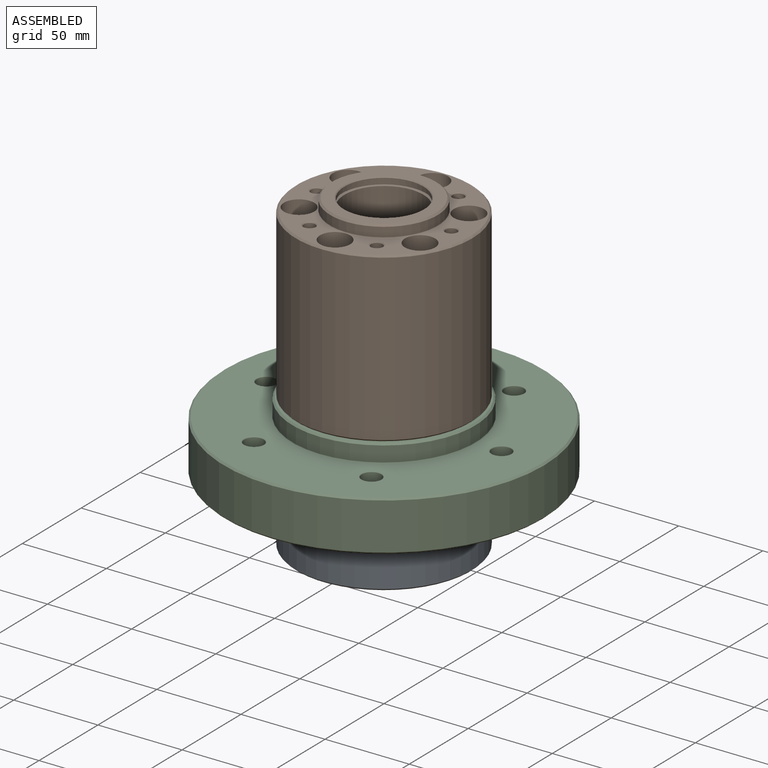
[diagram: assembled view]
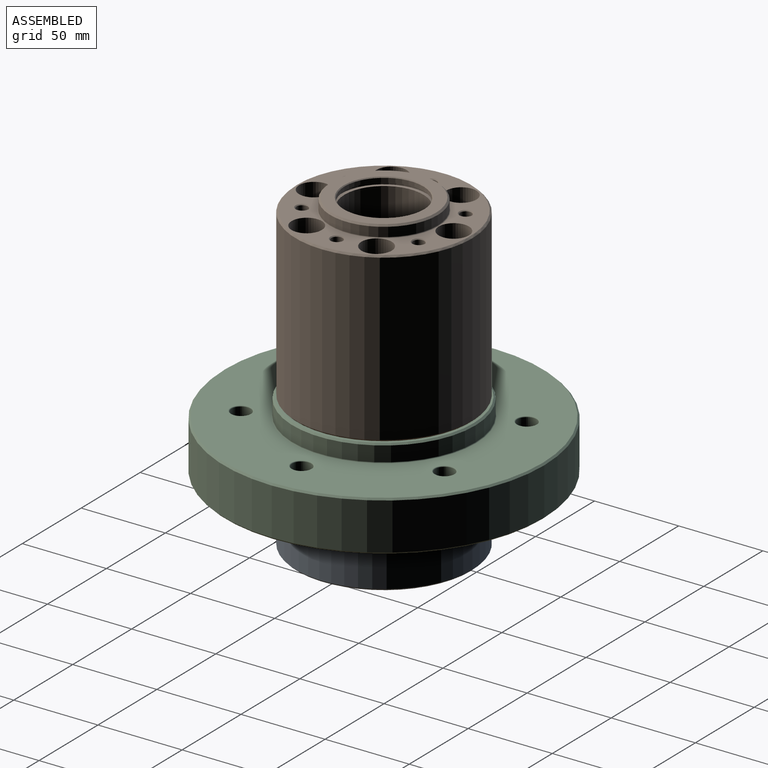
[diagram: assembled view, second angle]
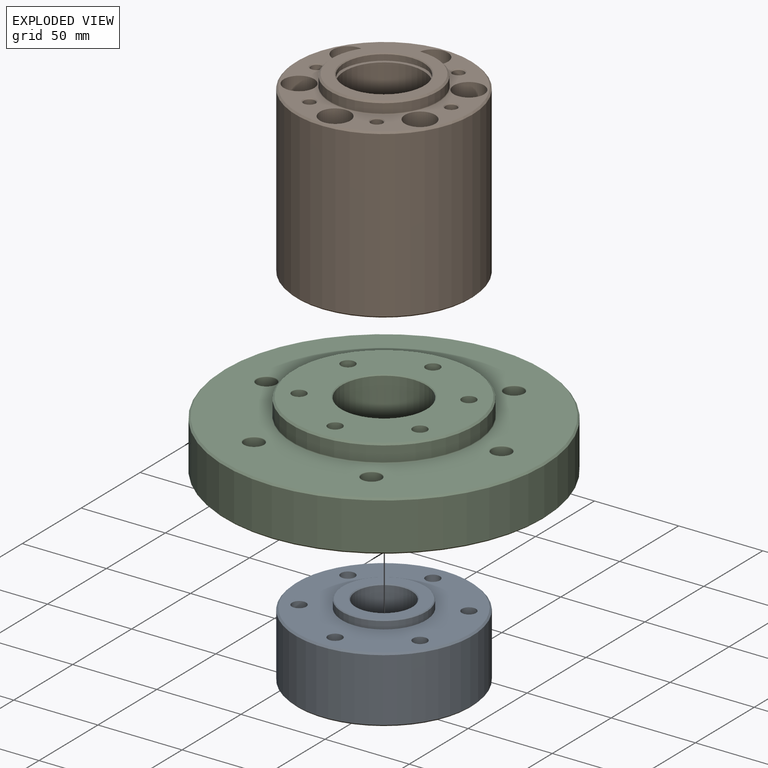
[diagram: exploded view]
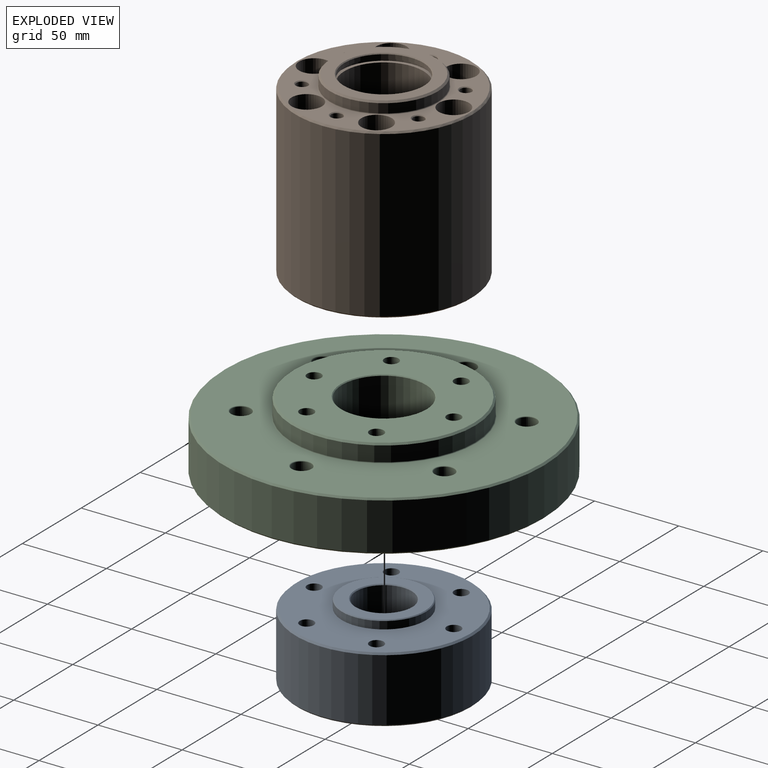
[diagram: exploded view, second angle]
ASSEMBLY  parts=3 mates=2
PART A: 64 faces, bbox 105x105x51.5 mm
  f0: plane 103x103mm, normal (0,0,-1), area 6044.1mm2, adj f1,f2,f3,f4,f5,f6,f53,f55
  f1: cylinder r=4.2mm len=24.5mm, axis (0,0,1), area 646.5mm2, adj f0,f45
  f2: cylinder r=4.2mm len=24.5mm, axis (0,0,1), area 646.5mm2, adj f0,f43
  f3: cylinder r=4.2mm len=24.5mm, axis (0,0,1), area 646.5mm2, adj f0,f41
  f4: cylinder r=4.2mm len=24.5mm, axis (0,0,1), area 646.5mm2, adj f0,f39
  f5: cylinder r=4.2mm len=24.5mm, axis (0,0,1), area 646.5mm2, adj f0,f37
  f6: cylinder r=4.2mm len=24.5mm, axis (0,0,1), area 646.5mm2, adj f0,f34
  f7: cylinder r=52.5mm len=105mm, axis (0,0,-1), area 12370mm2, adj f54,f55
  f8: plane 103x103mm, normal (0,0,1), area 3210.7mm2, adj f11,f22,f23,f24,f25,f26,f35,f38
  f9: cone r=3.4mm half-angle=59deg, axis (0,0,1), area 42.4mm2, adj f10
  f10: cylinder r=3.4mm len=27.5mm, axis (0,0,1), area 587.5mm2, adj f9,f11
  f11: cone r=3.4mm half-angle=45deg, axis (0,0,1), area 16.2mm2, adj f8,f10
  f12: cone r=3.4mm half-angle=59deg, axis (0,0,1), area 42.4mm2, adj f13
  f13: cylinder r=3.4mm len=27.5mm, axis (0,0,1), area 587.5mm2, adj f12,f22
  f14: cone r=3.4mm half-angle=59deg, axis (0,0,1), area 42.4mm2, adj f15
  f15: cylinder r=3.4mm len=27.5mm, axis (0,0,1), area 587.5mm2, adj f14,f23
  f16: cone r=3.4mm half-angle=59deg, axis (0,0,1), area 42.4mm2, adj f17
  f17: cylinder r=3.4mm len=27.5mm, axis (0,0,1), area 587.5mm2, adj f16,f24
  f18: cone r=3.4mm half-angle=59deg, axis (0,0,1), area 42.4mm2, adj f19
  f19: cylinder r=3.4mm len=27.5mm, axis (0,0,1), area 587.5mm2, adj f18,f25
  f20: cone r=3.4mm half-angle=59deg, axis (0,0,1), area 42.4mm2, adj f21
  f21: cylinder r=3.4mm len=27.5mm, axis (0,0,1), area 587.5mm2, adj f20,f26
  f22: cone r=3.4mm half-angle=45deg, axis (0,0,1), area 16.2mm2, adj f8,f13
  f23: cone r=3.4mm half-angle=45deg, axis (0,0,1), area 16.2mm2, adj f8,f15
  f24: cone r=3.4mm half-angle=45deg, axis (0,0,1), area 16.2mm2, adj f8,f17
  f25: cone r=3.4mm half-angle=45deg, axis (0,0,1), area 16.2mm2, adj f8,f19
  f26: cone r=3.4mm half-angle=45deg, axis (0,0,1), area 16.2mm2, adj f8,f21
  f27: cylinder r=31.95mm len=63.9mm, axis (0,0,-1), area 1104.1mm2, adj f56,f61
  f28: plane 61.9x61.9mm, normal (0,0,1), area 1201.3mm2, adj f56,f59
  f29: cylinder r=23.49mm len=46.98mm, axis (0,0,1), area 4132.6mm2, adj f59,f63
  f30: plane 45.98x45.98mm, normal (0,0,1), area 340.2mm2, adj f31,f63
  f31: cylinder r=20.5mm len=41mm, axis (0,0,1), area 193.2mm2, adj f30,f62
  f32: plane 40x40mm, normal (0,0,1), area 348.7mm2, adj f58,f62
  f33: cylinder r=16.5mm len=33mm, axis (0,0,1), area 2021.6mm2, adj f57,f58
  f34: plane 17x17mm, normal (0,0,1), area 171.6mm2, adj f6,f36
  f35: cylinder r=9mm len=18mm, axis (0,0,1), area 820mm2, adj f8,f36
  f36: torus R=8.5mm, axis (0,0,1), area 43.5mm2, adj f34,f35
  f37: plane 17x17mm, normal (0,0,1), area 171.6mm2, adj f5,f47
  f38: cylinder r=9mm len=18mm, axis (0,0,1), area 820mm2, adj f8,f47
  f39: plane 17x17mm, normal (0,0,1), area 171.6mm2, adj f4,f51
  f40: cylinder r=9mm len=18mm, axis (0,0,1), area 820mm2, adj f8,f51
  f41: plane 17x17mm, normal (0,0,1), area 171.6mm2, adj f3,f50
  f42: cylinder r=9mm len=18mm, axis (0,0,1), area 820mm2, adj f8,f50
  f43: plane 17x17mm, normal (0,0,1), area 171.6mm2, adj f2,f49
  f44: cylinder r=9mm len=18mm, axis (0,0,1), area 820mm2, adj f8,f49
  f45: plane 17x17mm, normal (0,0,1), area 171.6mm2, adj f1,f48
  f46: cylinder r=9mm len=18mm, axis (0,0,1), area 820mm2, adj f8,f48
  f47: torus R=8.5mm, axis (0,0,1), area 43.5mm2, adj f37,f38
  f48: torus R=8.5mm, axis (0,0,1), area 43.5mm2, adj f45,f46
  f49: torus R=8.5mm, axis (0,0,1), area 43.5mm2, adj f43,f44
  f50: torus R=8.5mm, axis (0,0,1), area 43.5mm2, adj f41,f42
  f51: torus R=8.5mm, axis (0,0,1), area 43.5mm2, adj f39,f40
  f52: plane 48.9x48.9mm, normal (0,0,-1), area 970.1mm2, adj f57,f60
  f53: cylinder r=24.95mm len=49.9mm, axis (0,0,1), area 705.4mm2, adj f0,f60
  f54: cone r=51.5mm half-angle=45deg, axis (0,0,-1), area 462.1mm2, adj f7,f8
  f55: cone r=52.5mm half-angle=45deg, axis (0,0,1), area 462.1mm2, adj f0,f7
  f56: cone r=30.95mm half-angle=45deg, axis (0,0,-1), area 279.5mm2, adj f27,f28
  f57: cone r=16.5mm half-angle=45deg, axis (0,0,-1), area 74.4mm2, adj f33,f52
  f58: cone r=16.5mm half-angle=45deg, axis (0,0,1), area 74.4mm2, adj f32,f33
  f59: cone r=23.49mm half-angle=45deg, axis (0,0,1), area 105.5mm2, adj f28,f29
  f60: cone r=24.45mm half-angle=45deg, axis (0,0,1), area 109.7mm2, adj f52,f53
  f61: torus R=32.45mm, axis (0,0,1), area 158.6mm2, adj f8,f27
  f62: torus R=20mm, axis (0,0,1), area 100.3mm2, adj f31,f32
  f63: torus R=22.99mm, axis (0,0,1), area 115mm2, adj f29,f30
PART B: 68 faces, bbox 105x105x112 mm
  f0: plane 103x103mm, normal (0,0,-1), area 6044.1mm2, adj f1,f2,f3,f4,f5,f6,f57,f64
  f1: cylinder r=4.2mm len=25mm, axis (0,0,1), area 659.7mm2, adj f0,f49
  f2: cylinder r=4.2mm len=25mm, axis (0,0,1), area 659.7mm2, adj f0,f47
  f3: cylinder r=4.2mm len=25mm, axis (0,0,1), area 659.7mm2, adj f0,f45
  f4: cylinder r=4.2mm len=25mm, axis (0,0,1), area 659.7mm2, adj f0,f43
  f5: cylinder r=4.2mm len=25mm, axis (0,0,1), area 659.7mm2, adj f0,f41
  f6: cylinder r=4.2mm len=25mm, axis (0,0,1), area 659.7mm2, adj f0,f38
  f7: cylinder r=23.49mm len=46.98mm, axis (0,0,1), area 354.2mm2, adj f31,f61
  f8: cylinder r=52.5mm len=105mm, axis (0,0,-1), area 32327mm2, adj f63,f64
  f9: plane 103x103mm, normal (0,0,1), area 3210.7mm2, adj f12,f23,f24,f25,f26,f27,f39,f42
  f10: cone r=3.4mm half-angle=59deg, axis (0,0,1), area 42.4mm2, adj f11
  f11: cylinder r=3.4mm len=27.5mm, axis (0,0,1), area 587.5mm2, adj f10,f12
  f12: cone r=3.4mm half-angle=45deg, axis (0,0,1), area 16.2mm2, adj f9,f11
  f13: cone r=3.4mm half-angle=59deg, axis (0,0,1), area 42.4mm2, adj f14
  f14: cylinder r=3.4mm len=27.5mm, axis (0,0,1), area 587.5mm2, adj f13,f23
  f15: cone r=3.4mm half-angle=59deg, axis (0,0,1), area 42.4mm2, adj f16
  f16: cylinder r=3.4mm len=27.5mm, axis (0,0,1), area 587.5mm2, adj f15,f24
  f17: cone r=3.4mm half-angle=59deg, axis (0,0,1), area 42.4mm2, adj f18
  f18: cylinder r=3.4mm len=27.5mm, axis (0,0,1), area 587.5mm2, adj f17,f25
  f19: cone r=3.4mm half-angle=59deg, axis (0,0,1), area 42.4mm2, adj f20
  f20: cylinder r=3.4mm len=27.5mm, axis (0,0,1), area 587.5mm2, adj f19,f26
  f21: cone r=3.4mm half-angle=59deg, axis (0,0,1), area 42.4mm2, adj f22
  f22: cylinder r=3.4mm len=27.5mm, axis (0,0,1), area 587.5mm2, adj f21,f27
  f23: cone r=3.4mm half-angle=45deg, axis (0,0,1), area 16.2mm2, adj f9,f14
  f24: cone r=3.4mm half-angle=45deg, axis (0,0,1), area 16.2mm2, adj f9,f16
  f25: cone r=3.4mm half-angle=45deg, axis (0,0,1), area 16.2mm2, adj f9,f18
  f26: cone r=3.4mm half-angle=45deg, axis (0,0,1), area 16.2mm2, adj f9,f20
  f27: cone r=3.4mm half-angle=45deg, axis (0,0,1), area 16.2mm2, adj f9,f22
  f28: cylinder r=31.95mm len=63.9mm, axis (0,0,-1), area 1104.1mm2, adj f62,f66
  f29: plane 61.9x61.9mm, normal (0,0,1), area 1201.3mm2, adj f61,f62
  f30: cylinder r=25.49mm len=50.98mm, axis (0,0,1), area 320.3mm2, adj f31,f32
  f31: plane 50.98x50.98mm, normal (0,0,-1), area 307.8mm2, adj f7,f30
  f32: plane 50.98x50.98mm, normal (0,0,1), area 307.8mm2, adj f30,f34
  f33: plane 45.98x45.98mm, normal (0,0,1), area 340.2mm2, adj f35,f67
  f34: cylinder r=23.49mm len=46.98mm, axis (0,0,1), area 3483.2mm2, adj f32,f67
  f35: cylinder r=20.5mm len=41mm, axis (0,0,1), area 193.2mm2, adj f33,f65
  f36: plane 40x40mm, normal (0,0,1), area 348.7mm2, adj f59,f65
  f37: cylinder r=16.5mm len=80mm, axis (0,0,1), area 8293.8mm2, adj f58,f59
  f38: plane 17x17mm, normal (0,0,1), area 171.6mm2, adj f6,f40
  f39: cylinder r=9mm len=74.5mm, axis (0,0,1), area 4212.9mm2, adj f9,f40
  f40: torus R=8.5mm, axis (0,0,1), area 43.5mm2, adj f38,f39
  f41: plane 17x17mm, normal (0,0,1), area 171.6mm2, adj f5,f51
  f42: cylinder r=9mm len=74.5mm, axis (0,0,1), area 4212.9mm2, adj f9,f51
  f43: plane 17x17mm, normal (0,0,1), area 171.6mm2, adj f4,f55
  f44: cylinder r=9mm len=74.5mm, axis (0,0,1), area 4212.9mm2, adj f9,f55
  f45: plane 17x17mm, normal (0,0,1), area 171.6mm2, adj f3,f54
  f46: cylinder r=9mm len=74.5mm, axis (0,0,1), area 4212.9mm2, adj f9,f54
  f47: plane 17x17mm, normal (0,0,1), area 171.6mm2, adj f2,f53
  f48: cylinder r=9mm len=74.5mm, axis (0,0,1), area 4212.9mm2, adj f9,f53
  f49: plane 17x17mm, normal (0,0,1), area 171.6mm2, adj f1,f52
  f50: cylinder r=9mm len=74.5mm, axis (0,0,1), area 4212.9mm2, adj f9,f52
  f51: torus R=8.5mm, axis (0,0,1), area 43.5mm2, adj f41,f42
  f52: torus R=8.5mm, axis (0,0,1), area 43.5mm2, adj f49,f50
  f53: torus R=8.5mm, axis (0,0,1), area 43.5mm2, adj f47,f48
  f54: torus R=8.5mm, axis (0,0,1), area 43.5mm2, adj f45,f46
  f55: torus R=8.5mm, axis (0,0,1), area 43.5mm2, adj f43,f44
  f56: plane 48.9x48.9mm, normal (0,0,-1), area 970.1mm2, adj f58,f60
  f57: cylinder r=24.95mm len=49.9mm, axis (0,0,1), area 705.4mm2, adj f0,f60
  f58: cone r=16.5mm half-angle=45deg, axis (0,0,-1), area 74.4mm2, adj f37,f56
  f59: cone r=16.5mm half-angle=45deg, axis (0,0,1), area 74.4mm2, adj f36,f37
  f60: cone r=24.45mm half-angle=45deg, axis (0,0,1), area 109.7mm2, adj f56,f57
  f61: cone r=23.99mm half-angle=45deg, axis (0,0,1), area 105.5mm2, adj f7,f29
  f62: cone r=30.95mm half-angle=45deg, axis (0,0,-1), area 279.5mm2, adj f28,f29
  f63: cone r=51.5mm half-angle=45deg, axis (0,0,-1), area 462.1mm2, adj f8,f9
  f64: cone r=52.5mm half-angle=45deg, axis (0,0,1), area 462.1mm2, adj f0,f8
  f65: torus R=20mm, axis (0,0,1), area 100.3mm2, adj f35,f36
  f66: torus R=32.45mm, axis (0,0,1), area 158.6mm2, adj f9,f28
  f67: torus R=22.99mm, axis (0,0,-1), area 115mm2, adj f33,f34
PART C: 36 faces, bbox 190.5x190.5x40.5 mm
  f0: plane 188.5x188.5mm, normal (0,0,-1), area 24794.3mm2, adj f4,f11,f13,f15,f17,f19,f23,f24
  f1: cylinder r=95.25mm len=190.5mm, axis (0,0,-1), area 16757.3mm2, adj f30,f31
  f2: plane 188.5x188.5mm, normal (0,0,1), area 17716.3mm2, adj f5,f12,f14,f16,f18,f20,f31,f35
  f3: cylinder r=5.75mm len=29mm, axis (0,0,-1), area 1048.5mm2, adj f4,f5
  f4: torus R=6.25mm, axis (0,0,1), area 29.3mm2, adj f0,f3
  f5: torus R=6.25mm, axis (0,0,1), area 29.3mm2, adj f2,f3
  f6: cylinder r=5.75mm len=29mm, axis (0,0,-1), area 1048.5mm2, adj f11,f12
  f7: cylinder r=5.75mm len=29mm, axis (0,0,-1), area 1048.5mm2, adj f13,f14
  f8: cylinder r=5.75mm len=29mm, axis (0,0,-1), area 1048.5mm2, adj f15,f16
  f9: cylinder r=5.75mm len=29mm, axis (0,0,-1), area 1048.5mm2, adj f17,f18
  f10: cylinder r=5.75mm len=29mm, axis (0,0,-1), area 1048.5mm2, adj f19,f20
  f11: torus R=6.25mm, axis (0,0,1), area 29.3mm2, adj f0,f6
  f12: torus R=6.25mm, axis (0,0,1), area 29.3mm2, adj f2,f6
  f13: torus R=6.25mm, axis (0,0,1), area 29.3mm2, adj f0,f7
  f14: torus R=6.25mm, axis (0,0,1), area 29.3mm2, adj f2,f7
  f15: torus R=6.25mm, axis (0,0,1), area 29.3mm2, adj f0,f8
  f16: torus R=6.25mm, axis (0,0,1), area 29.3mm2, adj f2,f8
  f17: torus R=6.25mm, axis (0,0,1), area 29.3mm2, adj f0,f9
  f18: torus R=6.25mm, axis (0,0,1), area 29.3mm2, adj f2,f9
  f19: torus R=6.25mm, axis (0,0,1), area 29.3mm2, adj f0,f10
  f20: torus R=6.25mm, axis (0,0,1), area 29.3mm2, adj f2,f10
  f21: cylinder r=54.36mm len=108.71mm, axis (0,0,-1), area 3073.7mm2, adj f32,f35
  f22: plane 106.71x106.71mm, normal (0,0,1), area 6568mm2, adj f23,f24,f25,f26,f27,f28,f32,f34
  f23: cylinder r=4.2mm len=40.5mm, axis (0,0,1), area 1068.8mm2, adj f0,f22
  f24: cylinder r=4.2mm len=40.5mm, axis (0,0,1), area 1068.8mm2, adj f0,f22
  f25: cylinder r=4.2mm len=40.5mm, axis (0,0,1), area 1068.8mm2, adj f0,f22
  f26: cylinder r=4.2mm len=40.5mm, axis (0,0,1), area 1068.8mm2, adj f0,f22
  f27: cylinder r=4.2mm len=40.5mm, axis (0,0,1), area 1068.8mm2, adj f0,f22
  f28: cylinder r=4.2mm len=40.5mm, axis (0,0,1), area 1068.8mm2, adj f0,f22
  f29: cylinder r=25mm len=50mm, axis (0,0,1), area 6204.6mm2, adj f33,f34
  f30: cone r=95.25mm half-angle=45deg, axis (0,0,1), area 841.9mm2, adj f0,f1
  f31: cone r=94.25mm half-angle=45deg, axis (0,0,-1), area 841.9mm2, adj f1,f2
  f32: cone r=53.35mm half-angle=45deg, axis (0,0,-1), area 478.5mm2, adj f21,f22
  f33: cone r=25.5mm half-angle=45deg, axis (0,0,-1), area 112.2mm2, adj f0,f29
  f34: cone r=25mm half-angle=45deg, axis (0,0,1), area 112.2mm2, adj f22,f29
  f35: torus R=54.86mm, axis (0,0,1), area 269.1mm2, adj f2,f21
PLACE A rot(axis=(1,0,0),180deg) t=(0,0,0)mm
PLACE B t=(0,0,40.5)mm
PLACE C at identity fixed
MATE fastened C.f25 <-> A.f5  axis (0,0,-1) through (-35.94,-20.75,0)mm
MATE fastened B.f1 <-> C.f25  axis (0,0,-1) through (-35.94,-20.75,40.5)mm
